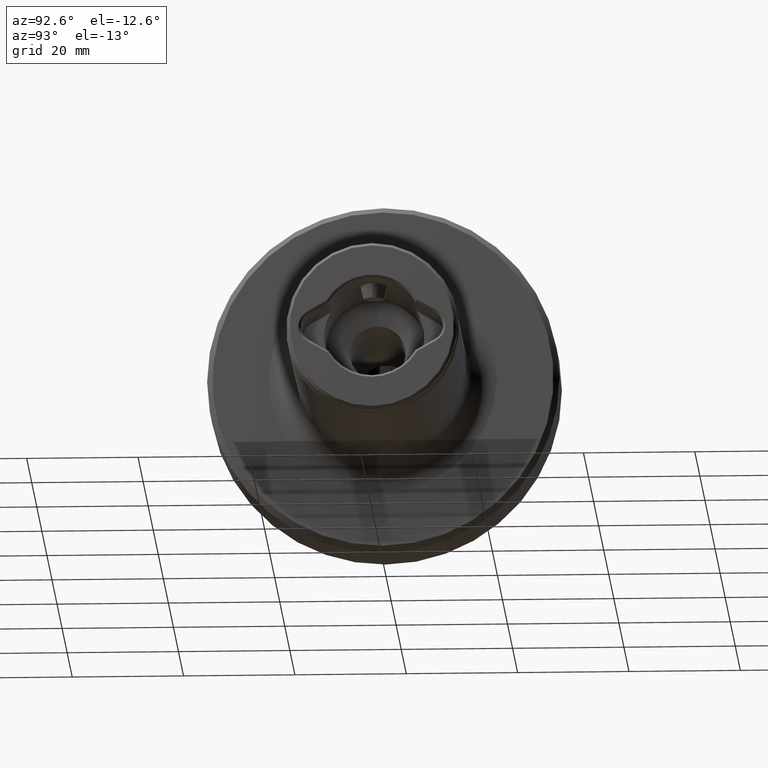
[diagram: clean part render]
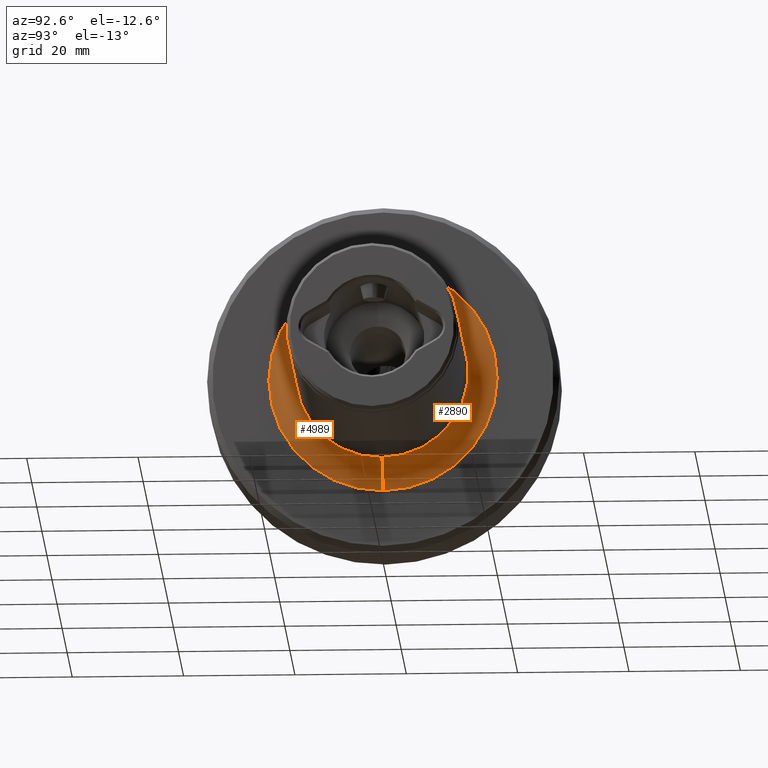
[diagram: same view with one multi-face feature highlighted, each face labeled with its STEP entity id]
A machine part, auxiliary view. The highlighted faces form ONE feature: a constant-radius fillet chain: 2 tangent blend faces with common blend radius 5 mm. The faces share edges in the B-rep.
Their STEP definitions:
[1] entity #2890 (Torus):
#53 = VERTEX_POINT ( 'NONE', #4317 ) ;
#89 = AXIS2_PLACEMENT_3D ( 'NONE', #4685, #720, #1533 ) ;
#99 = DIRECTION ( 'NONE',  ( -0.0000000000000000000, 1.000000000000000000, 1.224646799147353200E-016 ) ) ;
#274 = CARTESIAN_POINT ( 'NONE',  ( 57.00000000000000000, 0.0000000000000000000, 0.0000000000000000000 ) ) ;
#372 = EDGE_CURVE ( 'NONE', #2724, #1837, #1453, .T. ) ;
#385 = AXIS2_PLACEMENT_3D ( 'NONE', #1184, #2777, #1598 ) ;
#720 = DIRECTION ( 'NONE',  ( 0.0000000000000000000, -1.000000000000000000, 0.0000000000000000000 ) ) ;
#870 = AXIS2_PLACEMENT_3D ( 'NONE', #1935, #3593, #4778 ) ;
#896 = VERTEX_POINT ( 'NONE', #3344 ) ;
#975 = CARTESIAN_POINT ( 'NONE',  ( 57.00000000000000000, 2.510525938252074500E-015, -20.50000000000000000 ) ) ;
#982 = EDGE_CURVE ( 'NONE', #53, #896, #3650, .T. ) ;
#1184 = CARTESIAN_POINT ( 'NONE',  ( 57.00000000000000000, 0.0000000000000000000, 0.0000000000000000000 ) ) ;
#1453 = CIRCLE ( 'NONE', #89, 5.000000000000000900 ) ;
#1485 = DIRECTION ( 'NONE',  ( 1.000000000000000000, 0.0000000000000000000, 0.0000000000000000000 ) ) ;
#1533 = DIRECTION ( 'NONE',  ( 0.0000000000000000000, 0.0000000000000000000, -1.000000000000000000 ) ) ;
#1598 = DIRECTION ( 'NONE',  ( 0.0000000000000000000, 0.0000000000000000000, 1.000000000000000000 ) ) ;
#1818 = ORIENTED_EDGE ( 'NONE', *, *, #4512, .F. ) ;
#1837 = VERTEX_POINT ( 'NONE', #2267 ) ;
#1883 = EDGE_LOOP ( 'NONE', ( #4702, #1818, #2679, #5104 ) ) ;
#1935 = CARTESIAN_POINT ( 'NONE',  ( 52.00000000000000700, 0.0000000000000000000, 0.0000000000000000000 ) ) ;
#2267 = CARTESIAN_POINT ( 'NONE',  ( 57.00000000000000000, 0.0000000000000000000, 15.50000000000000000 ) ) ;
#2675 = CARTESIAN_POINT ( 'NONE',  ( 52.00000000000000700, 0.0000000000000000000, 20.50000000000000000 ) ) ;
#2679 = ORIENTED_EDGE ( 'NONE', *, *, #372, .T. ) ;
#2724 = VERTEX_POINT ( 'NONE', #2675 ) ;
#2777 = DIRECTION ( 'NONE',  ( -1.000000000000000000, -0.0000000000000000000, -0.0000000000000000000 ) ) ;
#2890 = ADVANCED_FACE ( 'NONE', ( #3882 ), #3694, .F. ) ;
#3265 = AXIS2_PLACEMENT_3D ( 'NONE', #975, #99, #3719 ) ;
#3320 = CIRCLE ( 'NONE', #870, 20.50000000000000000 ) ;
#3344 = CARTESIAN_POINT ( 'NONE',  ( 57.00000000000000000, 1.898202538678397600E-015, -15.50000000000000000 ) ) ;
#3593 = DIRECTION ( 'NONE',  ( -1.000000000000000000, -0.0000000000000000000, -0.0000000000000000000 ) ) ;
#3650 = CIRCLE ( 'NONE', #3265, 5.000000000000000900 ) ;
#3694 = TOROIDAL_SURFACE ( 'NONE', #385, 20.50000000000000000, 5.000000000000000000 ) ;
#3719 = DIRECTION ( 'NONE',  ( 0.0000000000000000000, -1.224646799147352700E-016, 1.000000000000000000 ) ) ;
#3882 = FACE_OUTER_BOUND ( 'NONE', #1883, .T. ) ;
#4265 = DIRECTION ( 'NONE',  ( 0.0000000000000000000, 0.0000000000000000000, 1.000000000000000000 ) ) ;
#4317 = CARTESIAN_POINT ( 'NONE',  ( 52.00000000000000700, 2.510525938252074500E-015, -20.50000000000000000 ) ) ;
#4380 = AXIS2_PLACEMENT_3D ( 'NONE', #274, #1485, #4265 ) ;
#4471 = EDGE_CURVE ( 'NONE', #896, #1837, #4804, .T. ) ;
#4512 = EDGE_CURVE ( 'NONE', #2724, #53, #3320, .T. ) ;
#4685 = CARTESIAN_POINT ( 'NONE',  ( 57.00000000000000000, 0.0000000000000000000, 20.50000000000000000 ) ) ;
#4702 = ORIENTED_EDGE ( 'NONE', *, *, #982, .F. ) ;
#4778 = DIRECTION ( 'NONE',  ( 0.0000000000000000000, 0.0000000000000000000, 1.000000000000000000 ) ) ;
#4804 = CIRCLE ( 'NONE', #4380, 15.50000000000000000 ) ;
#5104 = ORIENTED_EDGE ( 'NONE', *, *, #4471, .F. ) ;
[2] entity #4989 (Torus):
#53 = VERTEX_POINT ( 'NONE', #4317 ) ;
#89 = AXIS2_PLACEMENT_3D ( 'NONE', #4685, #720, #1533 ) ;
#99 = DIRECTION ( 'NONE',  ( -0.0000000000000000000, 1.000000000000000000, 1.224646799147353200E-016 ) ) ;
#302 = DIRECTION ( 'NONE',  ( 0.0000000000000000000, 0.0000000000000000000, 1.000000000000000000 ) ) ;
#372 = EDGE_CURVE ( 'NONE', #2724, #1837, #1453, .T. ) ;
#720 = DIRECTION ( 'NONE',  ( 0.0000000000000000000, -1.000000000000000000, 0.0000000000000000000 ) ) ;
#806 = CARTESIAN_POINT ( 'NONE',  ( 52.00000000000000700, 0.0000000000000000000, 0.0000000000000000000 ) ) ;
#815 = ORIENTED_EDGE ( 'NONE', *, *, #3881, .F. ) ;
#896 = VERTEX_POINT ( 'NONE', #3344 ) ;
#974 = FACE_OUTER_BOUND ( 'NONE', #1156, .T. ) ;
#975 = CARTESIAN_POINT ( 'NONE',  ( 57.00000000000000000, 2.510525938252074500E-015, -20.50000000000000000 ) ) ;
#982 = EDGE_CURVE ( 'NONE', #53, #896, #3650, .T. ) ;
#1082 = CARTESIAN_POINT ( 'NONE',  ( 57.00000000000000000, 0.0000000000000000000, 0.0000000000000000000 ) ) ;
#1156 = EDGE_LOOP ( 'NONE', ( #815, #4279, #4710, #3624 ) ) ;
#1453 = CIRCLE ( 'NONE', #89, 5.000000000000000900 ) ;
#1533 = DIRECTION ( 'NONE',  ( 0.0000000000000000000, 0.0000000000000000000, -1.000000000000000000 ) ) ;
#1837 = VERTEX_POINT ( 'NONE', #2267 ) ;
#2128 = AXIS2_PLACEMENT_3D ( 'NONE', #1082, #2299, #302 ) ;
#2267 = CARTESIAN_POINT ( 'NONE',  ( 57.00000000000000000, 0.0000000000000000000, 15.50000000000000000 ) ) ;
#2284 = DIRECTION ( 'NONE',  ( 0.0000000000000000000, 0.0000000000000000000, 1.000000000000000000 ) ) ;
#2299 = DIRECTION ( 'NONE',  ( -1.000000000000000000, -0.0000000000000000000, -0.0000000000000000000 ) ) ;
#2304 = CARTESIAN_POINT ( 'NONE',  ( 57.00000000000000000, 0.0000000000000000000, 0.0000000000000000000 ) ) ;
#2380 = AXIS2_PLACEMENT_3D ( 'NONE', #806, #3192, #4472 ) ;
#2631 = DIRECTION ( 'NONE',  ( 1.000000000000000000, 0.0000000000000000000, 0.0000000000000000000 ) ) ;
#2675 = CARTESIAN_POINT ( 'NONE',  ( 52.00000000000000700, 0.0000000000000000000, 20.50000000000000000 ) ) ;
#2724 = VERTEX_POINT ( 'NONE', #2675 ) ;
#3192 = DIRECTION ( 'NONE',  ( -1.000000000000000000, -0.0000000000000000000, -0.0000000000000000000 ) ) ;
#3265 = AXIS2_PLACEMENT_3D ( 'NONE', #975, #99, #3719 ) ;
#3315 = CIRCLE ( 'NONE', #3843, 15.50000000000000000 ) ;
#3344 = CARTESIAN_POINT ( 'NONE',  ( 57.00000000000000000, 1.898202538678397600E-015, -15.50000000000000000 ) ) ;
#3624 = ORIENTED_EDGE ( 'NONE', *, *, #372, .F. ) ;
#3650 = CIRCLE ( 'NONE', #3265, 5.000000000000000900 ) ;
#3719 = DIRECTION ( 'NONE',  ( 0.0000000000000000000, -1.224646799147352700E-016, 1.000000000000000000 ) ) ;
#3843 = AXIS2_PLACEMENT_3D ( 'NONE', #2304, #2631, #2284 ) ;
#3877 = CIRCLE ( 'NONE', #2380, 20.50000000000000000 ) ;
#3878 = TOROIDAL_SURFACE ( 'NONE', #2128, 20.50000000000000000, 5.000000000000000000 ) ;
#3881 = EDGE_CURVE ( 'NONE', #53, #2724, #3877, .T. ) ;
#4279 = ORIENTED_EDGE ( 'NONE', *, *, #982, .T. ) ;
#4317 = CARTESIAN_POINT ( 'NONE',  ( 52.00000000000000700, 2.510525938252074500E-015, -20.50000000000000000 ) ) ;
#4439 = EDGE_CURVE ( 'NONE', #1837, #896, #3315, .T. ) ;
#4472 = DIRECTION ( 'NONE',  ( 0.0000000000000000000, 0.0000000000000000000, 1.000000000000000000 ) ) ;
#4685 = CARTESIAN_POINT ( 'NONE',  ( 57.00000000000000000, 0.0000000000000000000, 20.50000000000000000 ) ) ;
#4710 = ORIENTED_EDGE ( 'NONE', *, *, #4439, .F. ) ;
#4989 = ADVANCED_FACE ( 'NONE', ( #974 ), #3878, .F. ) ;